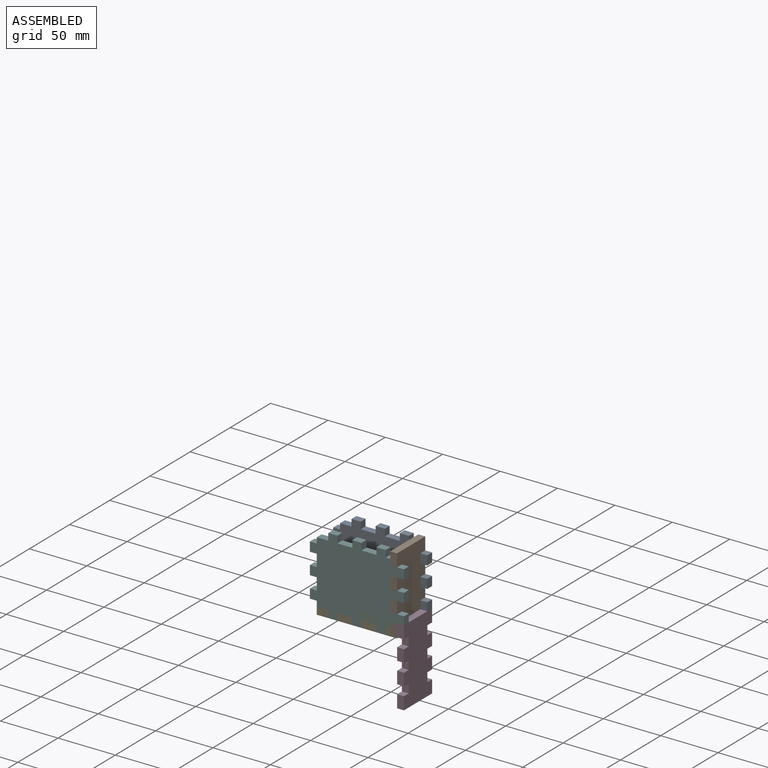
[diagram: assembled view]
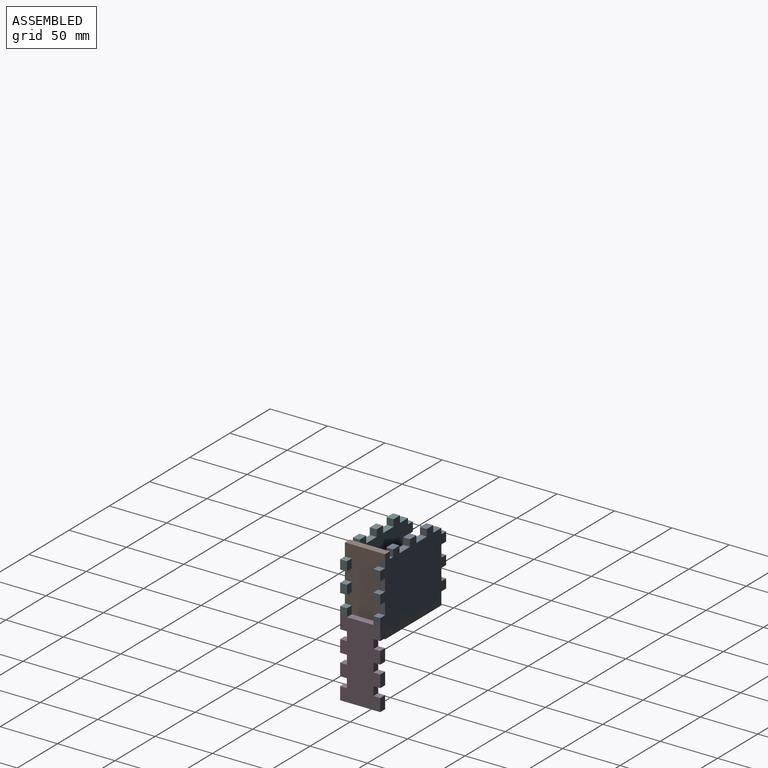
[diagram: assembled view, second angle]
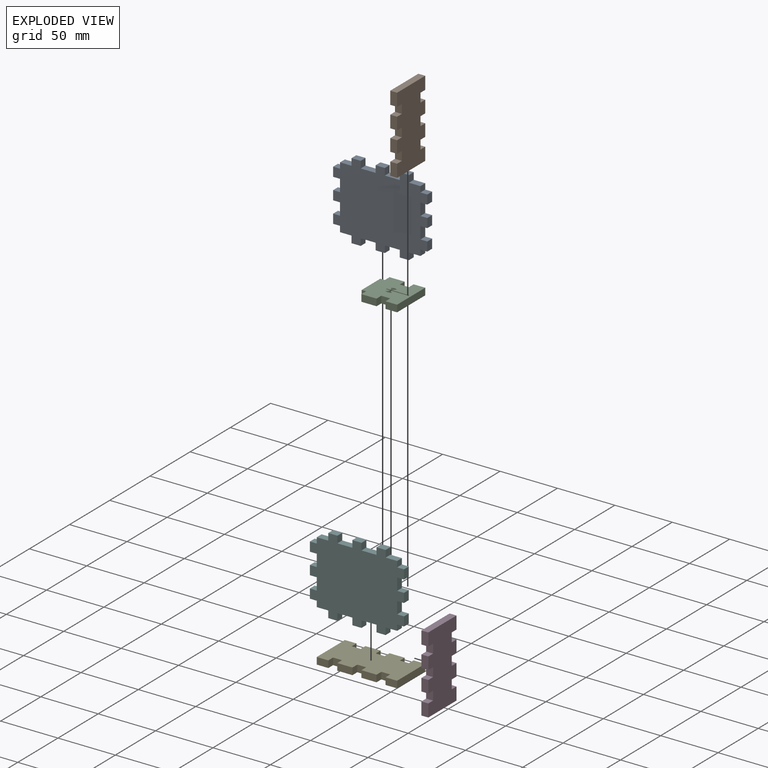
[diagram: exploded view]
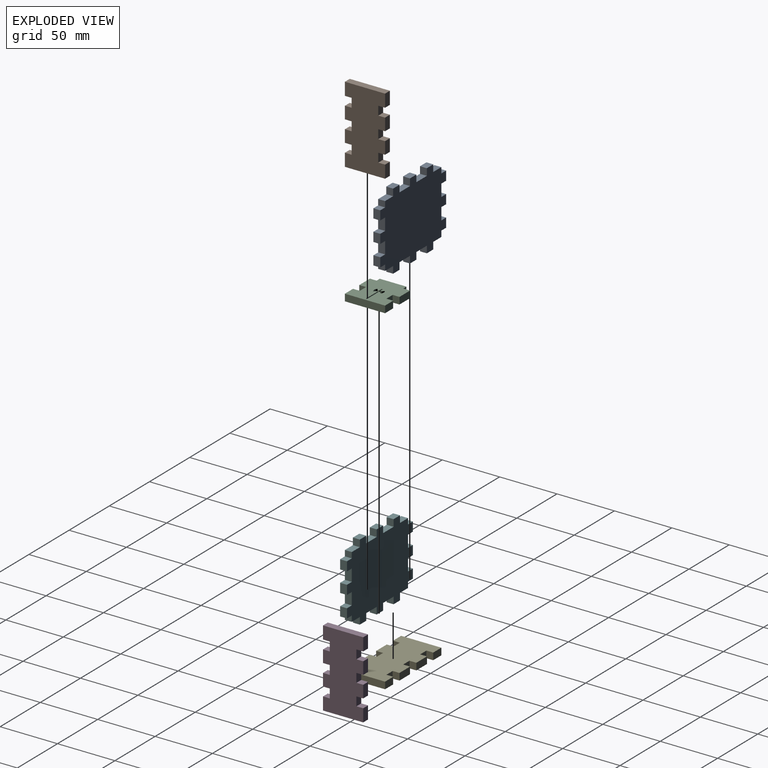
[diagram: exploded view, second angle]
ASSEMBLY  parts=6 mates=5
PART A: 54 faces, bbox 82x67x6 mm
  f0: plane 6x6mm, normal (1,0,0), area 36mm2, adj f1,f51,f52,f53
  f1: plane 13x6mm, normal (0,-1,0), area 78mm2, adj f0,f2,f52,f53
  f2: plane 6x6mm, normal (-1,0,0), area 36mm2, adj f1,f3,f52,f53
  f3: plane 8x6mm, normal (0,-1,0), area 48mm2, adj f2,f4,f52,f53
  f4: plane 6x6mm, normal (1,0,0), area 36mm2, adj f3,f5,f52,f53
  f5: plane 10x6mm, normal (0,-1,0), area 60mm2, adj f4,f6,f52,f53
  f6: plane 6x5mm, normal (1,0,0), area 30mm2, adj f5,f7,f52,f53
  f7: plane 6x6mm, normal (0,-1,0), area 36mm2, adj f6,f8,f52,f53
  f8: plane 8x6mm, normal (1,0,0), area 48mm2, adj f7,f9,f52,f53
  f9: plane 6x6mm, normal (0,1,0), area 36mm2, adj f8,f10,f52,f53
  f10: plane 10.5x6mm, normal (1,0,0), area 63mm2, adj f9,f11,f52,f53
  f11: plane 6x6mm, normal (0,-1,0), area 36mm2, adj f10,f12,f52,f53
  f12: plane 8x6mm, normal (1,0,0), area 48mm2, adj f11,f13,f52,f53
  f13: plane 6x6mm, normal (0,1,0), area 36mm2, adj f12,f14,f52,f53
  f14: plane 10.5x6mm, normal (1,0,0), area 63mm2, adj f13,f15,f52,f53
  f15: plane 6x6mm, normal (0,-1,0), area 36mm2, adj f14,f16,f52,f53
  f16: plane 8x6mm, normal (1,0,0), area 48mm2, adj f15,f17,f52,f53
  f17: plane 6x6mm, normal (0,1,0), area 36mm2, adj f16,f18,f52,f53
  f18: plane 6x5mm, normal (1,0,0), area 30mm2, adj f17,f19,f52,f53
  f19: plane 10x6mm, normal (0,1,0), area 60mm2, adj f18,f20,f52,f53
  f20: plane 6x6mm, normal (1,0,0), area 36mm2, adj f19,f21,f52,f53
  f21: plane 8x6mm, normal (0,1,0), area 48mm2, adj f20,f22,f52,f53
  f22: plane 6x6mm, normal (-1,0,0), area 36mm2, adj f21,f23,f52,f53
  f23: plane 13x6mm, normal (0,1,0), area 78mm2, adj f22,f24,f52,f53
  f24: plane 6x6mm, normal (1,0,0), area 36mm2, adj f23,f25,f52,f53
  f25: plane 8x6mm, normal (0,1,0), area 48mm2, adj f24,f26,f52,f53
  f26: plane 6x6mm, normal (-1,0,0), area 36mm2, adj f25,f27,f52,f53
  f27: plane 13x6mm, normal (0,1,0), area 78mm2, adj f26,f28,f52,f53
  f28: plane 6x6mm, normal (1,0,0), area 36mm2, adj f27,f29,f52,f53
  f29: plane 8x6mm, normal (0,1,0), area 48mm2, adj f28,f30,f52,f53
  f30: plane 6x6mm, normal (-1,0,0), area 36mm2, adj f29,f31,f52,f53
  f31: plane 10x6mm, normal (0,1,0), area 60mm2, adj f30,f32,f52,f53
  f32: plane 6x5mm, normal (-1,0,0), area 30mm2, adj f31,f33,f52,f53
  f33: plane 6x6mm, normal (0,1,0), area 36mm2, adj f32,f34,f52,f53
  f34: plane 8x6mm, normal (-1,0,0), area 48mm2, adj f33,f35,f52,f53
  f35: plane 6x6mm, normal (0,-1,0), area 36mm2, adj f34,f36,f52,f53
  f36: plane 10.5x6mm, normal (-1,0,0), area 63mm2, adj f35,f37,f52,f53
  f37: plane 6x6mm, normal (0,1,0), area 36mm2, adj f36,f38,f52,f53
  f38: plane 8x6mm, normal (-1,0,0), area 48mm2, adj f37,f39,f52,f53
  f39: plane 6x6mm, normal (0,-1,0), area 36mm2, adj f38,f40,f52,f53
  f40: plane 10.5x6mm, normal (-1,0,0), area 63mm2, adj f39,f41,f52,f53
  f41: plane 6x6mm, normal (0,1,0), area 36mm2, adj f40,f42,f52,f53
  f42: plane 8x6mm, normal (-1,0,0), area 48mm2, adj f41,f43,f52,f53
  f43: plane 6x6mm, normal (0,-1,0), area 36mm2, adj f42,f44,f52,f53
  f44: plane 6x5mm, normal (-1,0,0), area 30mm2, adj f43,f45,f52,f53
  f45: plane 10x6mm, normal (0,-1,0), area 60mm2, adj f44,f46,f52,f53
  f46: plane 6x6mm, normal (-1,0,0), area 36mm2, adj f45,f47,f52,f53
  f47: plane 8x6mm, normal (0,-1,0), area 48mm2, adj f46,f48,f52,f53
  f48: plane 6x6mm, normal (1,0,0), area 36mm2, adj f47,f49,f52,f53
  f49: plane 13x6mm, normal (0,-1,0), area 78mm2, adj f48,f50,f52,f53
  f50: plane 6x6mm, normal (-1,0,0), area 36mm2, adj f49,f51,f52,f53
  f51: plane 8x6mm, normal (0,-1,0), area 48mm2, adj f0,f50,f52,f53
  f52: plane 82x67mm, normal (0,0,1), area 4426mm2, adj f0,f1,f2,f3,f4,f5,f6,f7
  f53: plane 82x67mm, normal (0,0,-1), area 4426mm2, adj f0,f1,f2,f3,f4,f5,f6,f7
PART B: 30 faces, bbox 35x67x6 mm
  f0: plane 7.8x6mm, normal (-1,0,0), area 46.8mm2, adj f1,f27,f28,f29
  f1: plane 6x5.9mm, normal (0,1,0), area 35.4mm2, adj f0,f2,f28,f29
  f2: plane 10.7x6mm, normal (-1,0,0), area 64.2mm2, adj f1,f3,f28,f29
  f3: plane 6x5.9mm, normal (0,-1,0), area 35.4mm2, adj f2,f4,f28,f29
  f4: plane 7.8x6mm, normal (-1,0,0), area 46.8mm2, adj f3,f5,f28,f29
  f5: plane 6x5.9mm, normal (0,1,0), area 35.4mm2, adj f4,f6,f28,f29
  f6: plane 11.1x6mm, normal (-1,0,0), area 66.6mm2, adj f5,f7,f28,f29
  f7: plane 35x6mm, normal (0,-1,0), area 210mm2, adj f6,f8,f28,f29
  f8: plane 11.1x6mm, normal (1,0,0), area 66.6mm2, adj f7,f9,f28,f29
  f9: plane 6x5.9mm, normal (0,1,0), area 35.4mm2, adj f8,f10,f28,f29
  f10: plane 7.8x6mm, normal (1,0,0), area 46.8mm2, adj f9,f11,f28,f29
  f11: plane 6x5.9mm, normal (0,-1,0), area 35.4mm2, adj f10,f12,f28,f29
  f12: plane 10.7x6mm, normal (1,0,0), area 64.2mm2, adj f11,f13,f28,f29
  f13: plane 6x5.9mm, normal (0,1,0), area 35.4mm2, adj f12,f14,f28,f29
  f14: plane 7.8x6mm, normal (1,0,0), area 46.8mm2, adj f13,f15,f28,f29
  f15: plane 6x5.9mm, normal (0,-1,0), area 35.4mm2, adj f14,f16,f28,f29
  f16: plane 10.7x6mm, normal (1,0,0), area 64.2mm2, adj f15,f17,f28,f29
  f17: plane 6x5.9mm, normal (0,1,0), area 35.4mm2, adj f16,f18,f28,f29
  f18: plane 7.8x6mm, normal (1,0,0), area 46.8mm2, adj f17,f19,f28,f29
  f19: plane 6x5.9mm, normal (0,-1,0), area 35.4mm2, adj f18,f20,f28,f29
  f20: plane 11.1x6mm, normal (1,0,0), area 66.6mm2, adj f19,f21,f28,f29
  f21: plane 35x6mm, normal (0,1,0), area 210mm2, adj f20,f22,f28,f29
  f22: plane 11.1x6mm, normal (-1,0,0), area 66.6mm2, adj f21,f23,f28,f29
  f23: plane 6x5.9mm, normal (0,-1,0), area 35.4mm2, adj f22,f24,f28,f29
  f24: plane 7.8x6mm, normal (-1,0,0), area 46.8mm2, adj f23,f25,f28,f29
  f25: plane 6x5.9mm, normal (0,1,0), area 35.4mm2, adj f24,f26,f28,f29
  f26: plane 10.7x6mm, normal (-1,0,0), area 64.2mm2, adj f25,f27,f28,f29
  f27: plane 6x5.9mm, normal (0,-1,0), area 35.4mm2, adj f0,f26,f28,f29
  f28: plane 67x35mm, normal (0,0,1), area 2068.9mm2, adj f0,f1,f2,f3,f4,f5,f6,f7
  f29: plane 67x35mm, normal (0,0,-1), area 2068.9mm2, adj f0,f1,f2,f3,f4,f5,f6,f7
PART C: 30 faces, bbox 35x35x6 mm
  f0: plane 13.2x6mm, normal (0,1,0), area 79.2mm2, adj f3,f4,f20,f22
  f1: plane 23.2x6mm, normal (-1,0,0), area 139.2mm2, adj f3,f4,f21,f29
  f2: plane 13.2x6mm, normal (0,-1,0), area 79.2mm2, adj f3,f4,f27,f28
  f3: plane 35x35mm, normal (0,0,1), area 1046.4mm2, adj f0,f1,f2,f5,f6,f7,f8,f9
  f4: plane 35x35mm, normal (0,0,-1), area 1046.4mm2, adj f0,f1,f2,f5,f6,f7,f8,f9
  f5: cylinder r=4.13mm len=6mm, axis (0,0,-1), area 34.4mm2, adj f3,f4,f6,f19
  f6: cylinder r=3.5mm len=6mm, axis (0,0,-1), area 20.8mm2, adj f3,f4,f5,f7
  f7: plane 6x3.46mm, normal (0,1,0), area 20.8mm2, adj f3,f4,f6,f8
  f8: plane 6x1mm, normal (1,0,0), area 6mm2, adj f3,f4,f7,f9
  f9: plane 6x3.46mm, normal (0,-1,0), area 20.8mm2, adj f3,f4,f8,f10
  f10: cylinder r=3.5mm len=6mm, axis (0,0,-1), area 20.8mm2, adj f3,f4,f9,f11
  f11: cylinder r=4.13mm len=6mm, axis (0,0,-1), area 34.4mm2, adj f3,f4,f10,f12
  f12: cylinder r=3.5mm len=6mm, axis (0,0,-1), area 20.8mm2, adj f3,f4,f11,f13
  f13: plane 14.9x6mm, normal (0,-1,0), area 89.4mm2, adj f3,f4,f12,f14
  f14: plane 6x1mm, normal (-1,0,0), area 6mm2, adj f3,f4,f13,f15
  f15: plane 14.9x6mm, normal (0,1,0), area 89.4mm2, adj f3,f4,f14,f19
  f16: plane 35x6mm, normal (1,0,0), area 210mm2, adj f3,f4,f17,f18
  f17: plane 10.1x6mm, normal (0,1,0), area 60.6mm2, adj f3,f4,f16,f24
  f18: plane 10.1x6mm, normal (0,-1,0), area 60.6mm2, adj f3,f4,f16,f25
  f19: cylinder r=3.5mm len=6mm, axis (0,0,-1), area 20.8mm2, adj f3,f4,f5,f15
  f20: plane 6x5.9mm, normal (-1,0,0), area 35.4mm2, adj f0,f3,f4,f21
  f21: plane 6x3.9mm, normal (0,1,0), area 23.4mm2, adj f1,f3,f4,f20
  f22: plane 6x5.9mm, normal (1,0,0), area 35.4mm2, adj f0,f3,f4,f23
  f23: plane 7.8x6mm, normal (0,1,0), area 46.8mm2, adj f3,f4,f22,f24
  f24: plane 6x5.9mm, normal (-1,0,0), area 35.4mm2, adj f3,f4,f17,f23
  f25: plane 6x5.9mm, normal (-1,0,0), area 35.4mm2, adj f3,f4,f18,f26
  f26: plane 7.8x6mm, normal (0,-1,0), area 46.8mm2, adj f3,f4,f25,f27
  f27: plane 6x5.9mm, normal (1,0,0), area 35.4mm2, adj f2,f3,f4,f26
  f28: plane 6x5.9mm, normal (-1,0,0), area 35.4mm2, adj f2,f3,f4,f29
  f29: plane 6x3.9mm, normal (0,-1,0), area 23.4mm2, adj f1,f3,f4,f28
PART D: same geometry as B
PART E: 30 faces, bbox 70x35x6 mm
  f0: plane 10.1x6mm, normal (0,1,0), area 60.6mm2, adj f1,f27,f28,f29
  f1: plane 6x5.9mm, normal (-1,0,0), area 35.4mm2, adj f0,f2,f28,f29
  f2: plane 7.8x6mm, normal (0,1,0), area 46.8mm2, adj f1,f3,f28,f29
  f3: plane 6x5.9mm, normal (1,0,0), area 35.4mm2, adj f2,f4,f28,f29
  f4: plane 13.2x6mm, normal (0,1,0), area 79.2mm2, adj f3,f5,f28,f29
  f5: plane 6x6mm, normal (-1,0,0), area 36mm2, adj f4,f6,f28,f29
  f6: plane 7.8x6mm, normal (0,1,0), area 46.8mm2, adj f5,f7,f28,f29
  f7: plane 6x6mm, normal (1,0,0), area 36mm2, adj f6,f8,f28,f29
  f8: plane 13.2x6mm, normal (0,1,0), area 79.2mm2, adj f7,f9,f28,f29
  f9: plane 6x5.9mm, normal (-1,0,0), area 35.4mm2, adj f8,f10,f28,f29
  f10: plane 7.8x6mm, normal (0,1,0), area 46.8mm2, adj f9,f11,f28,f29
  f11: plane 6x5.9mm, normal (1,0,0), area 35.4mm2, adj f10,f12,f28,f29
  f12: plane 10.1x6mm, normal (0,1,0), area 60.6mm2, adj f11,f13,f28,f29
  f13: plane 35x6mm, normal (-1,0,0), area 210mm2, adj f12,f14,f28,f29
  f14: plane 10.1x6mm, normal (0,-1,0), area 60.6mm2, adj f13,f15,f28,f29
  f15: plane 6x5.9mm, normal (1,0,0), area 35.4mm2, adj f14,f16,f28,f29
  f16: plane 7.8x6mm, normal (0,-1,0), area 46.8mm2, adj f15,f17,f28,f29
  f17: plane 6x5.9mm, normal (-1,0,0), area 35.4mm2, adj f16,f18,f28,f29
  f18: plane 13.2x6mm, normal (0,-1,0), area 79.2mm2, adj f17,f19,f28,f29
  f19: plane 6x6mm, normal (1,0,0), area 36mm2, adj f18,f20,f28,f29
  f20: plane 7.8x6mm, normal (0,-1,0), area 46.8mm2, adj f19,f21,f28,f29
  f21: plane 6x6mm, normal (-1,0,0), area 36mm2, adj f20,f22,f28,f29
  f22: plane 13.2x6mm, normal (0,-1,0), area 79.2mm2, adj f21,f23,f28,f29
  f23: plane 6x5.9mm, normal (1,0,0), area 35.4mm2, adj f22,f24,f28,f29
  f24: plane 7.8x6mm, normal (0,-1,0), area 46.8mm2, adj f23,f25,f28,f29
  f25: plane 6x5.9mm, normal (-1,0,0), area 35.4mm2, adj f24,f26,f28,f29
  f26: plane 10.1x6mm, normal (0,-1,0), area 60.6mm2, adj f25,f27,f28,f29
  f27: plane 35x6mm, normal (1,0,0), area 210mm2, adj f0,f26,f28,f29
  f28: plane 70x35mm, normal (0,0,1), area 2172.3mm2, adj f0,f1,f2,f3,f4,f5,f6,f7
  f29: plane 70x35mm, normal (0,0,-1), area 2172.3mm2, adj f0,f1,f2,f3,f4,f5,f6,f7
PART F: same geometry as A
PLACE A rot(axis=(-1,0,0),90deg) t=(-12.74,4.93,31.69)mm
PLACE B rot(axis=(-0.58,-0.58,0.58),120deg) t=(22.26,-6.57,31.69)mm
PLACE C t=(4.76,-6.57,4.19)mm
PLACE D rot(axis=(0.58,-0.58,-0.58),120deg) t=(28.26,-6.57,-23.31)mm
PLACE E t=(-12.74,-6.57,-1.81)mm fixed
PLACE F rot(axis=(-1,0,0),90deg) t=(-12.74,-24.07,31.69)mm
MATE fastened E.f27 <-> B.f29  axis (-1,0,0) through (22.26,10.93,-1.81)mm
MATE fastened A.f19 <-> E.f28  axis (0,0,-1) through (22.26,10.93,4.19)mm
MATE fastened C.f16 <-> D.f28  axis (1,0,0) through (22.26,-24.07,10.19)mm
MATE fastened F.f19 <-> C.f4  axis (0,0,1) through (22.26,-24.07,4.19)mm
MATE fastened F.f19 <-> E.f28  axis (0,0,-1) through (22.26,-24.07,4.19)mm
